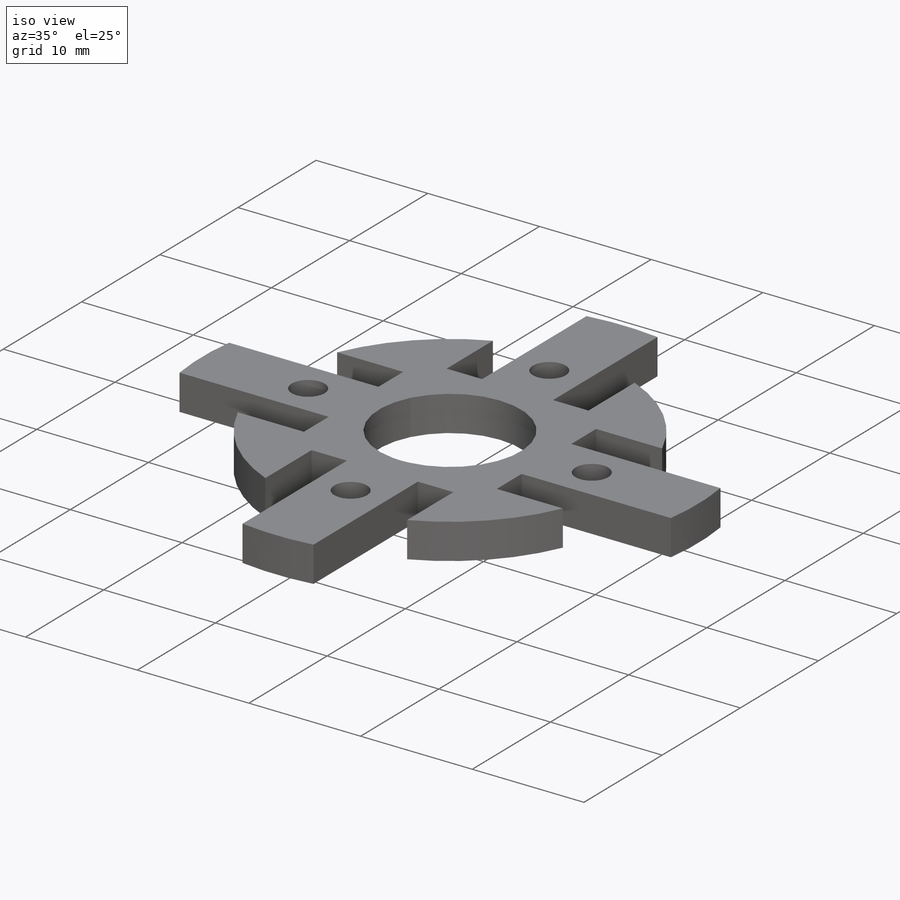
[diagram: iso view]
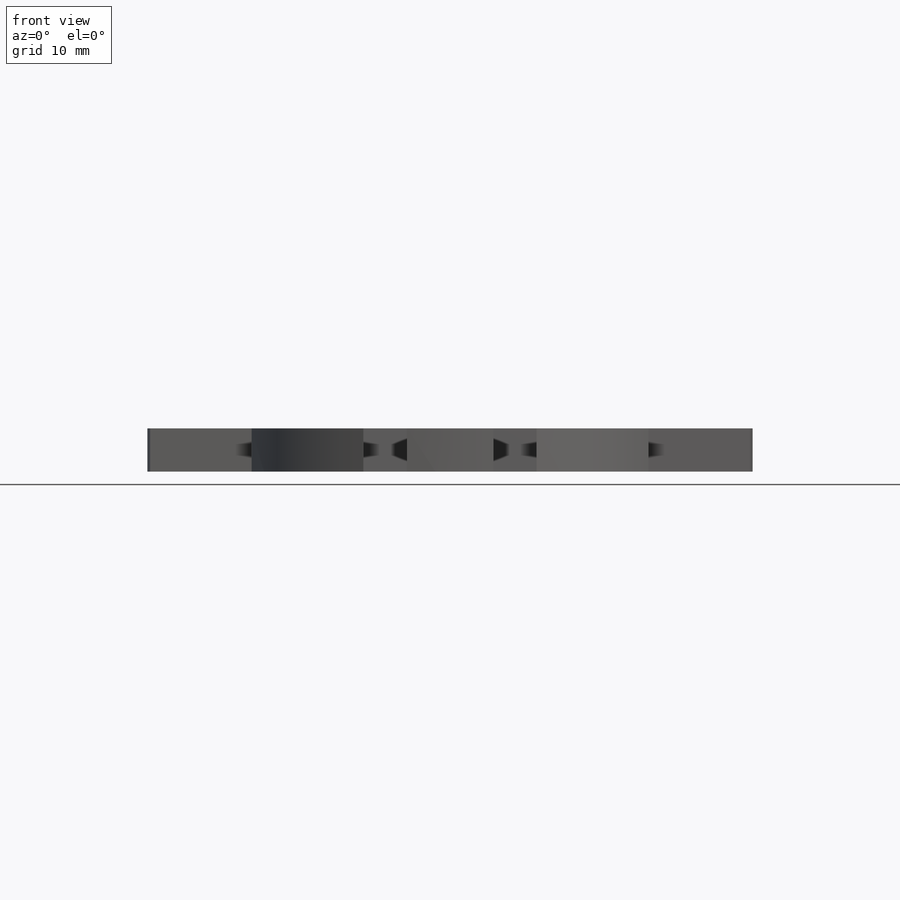
[diagram: front view]
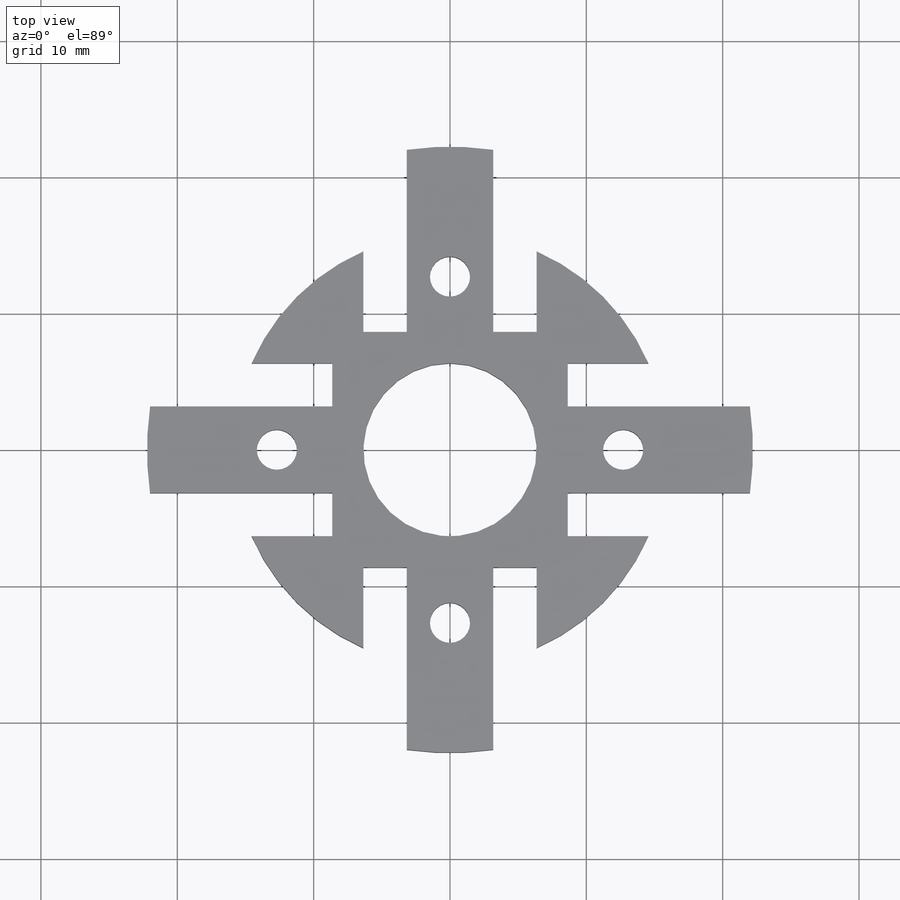
[diagram: top view]
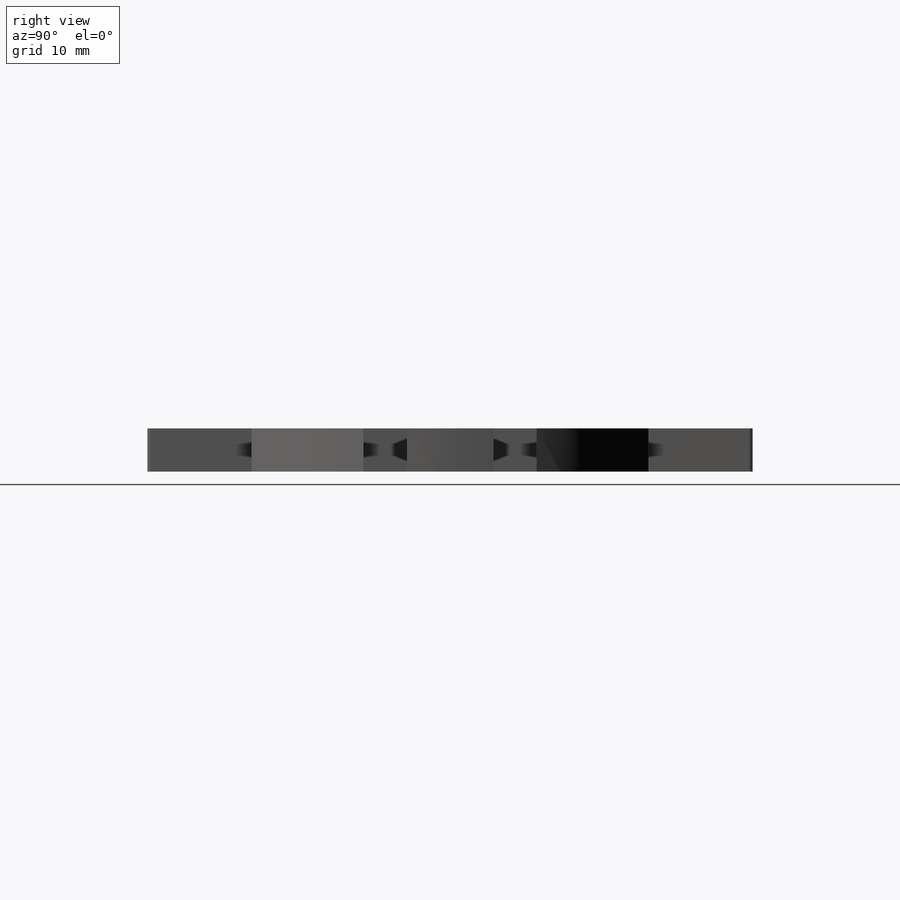
[diagram: right view]
SOLIDWORKS PART (.sldprt)
format: sldprt  version: not decoded by parser v0  size: 284,160 bytes
history: native  units: mm
features: sketch x7, hole x2, material x1, extrude x1, cut_extrude x1, mirror x1, pattern_circular x1 (+12 scaffold rows collapsed)
feature tree (26):
  scaffold x12  (default folders/planes/origin — collapsed)
  material  "Material <not specified>"
  sketch  "Sketch1"  dims[c1.D1=12.7mm c1.D2=44.45mm c1.D5=~19.157502mm c1.D3=6.35mm c2.D5=9.525mm c2.D4=4.0]
  extrude  "Boss-Extrude1"  Depth=3.175mm
  sketch  "Sketch2"  dims[D2=1.524mm D3=3.9624mm D4=12.7mm D5=38.1mm D1=7.9375mm]
  hole  "1/16 (0.0625) Press Dowel Hole1"  Diameter=1.524mm Depth=3.176mm
  sketch  "Sketch4"
  sketch  "Sketch6"  dims[hole-wizard template sketch: 59 standard entries collapsed; hole parameters kept: c18.Thru Hole Dia.=1.524mm c18.Thru Hole Depth=3.176mm]
  hole  "#4 Clearance Hole1"  Diameter=2.9464mm Depth=3.175mm
  sketch  "Sketch8"
  sketch  "Sketch10"  dims[hole-wizard template sketch: 60 standard entries collapsed; hole parameters kept: c18.Thru Hole Depth=3.175mm]
  sketch  "Sketch11"  dims[D1=3.175mm D2=8.636mm]
  cut_extrude  "Cut-Extrude1"  [1 undecoded]
  mirror  "Mirror1"
  pattern_circular  "CirPattern2"  Count=4 Angle=360deg
decode coverage: 9 of 13 modeling features carry decoded parameters
note: ~ marks probable driven/reference dimensions
note: 1 parameter value undecoded
note: suppression state not decoded; provenance and decode notes live in map.json
